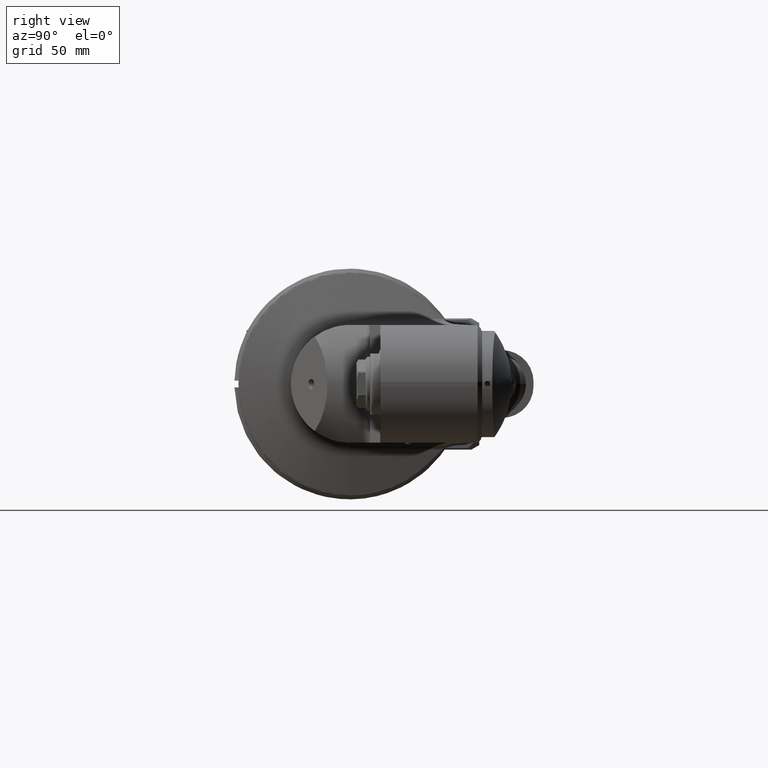
[diagram: clean part render]
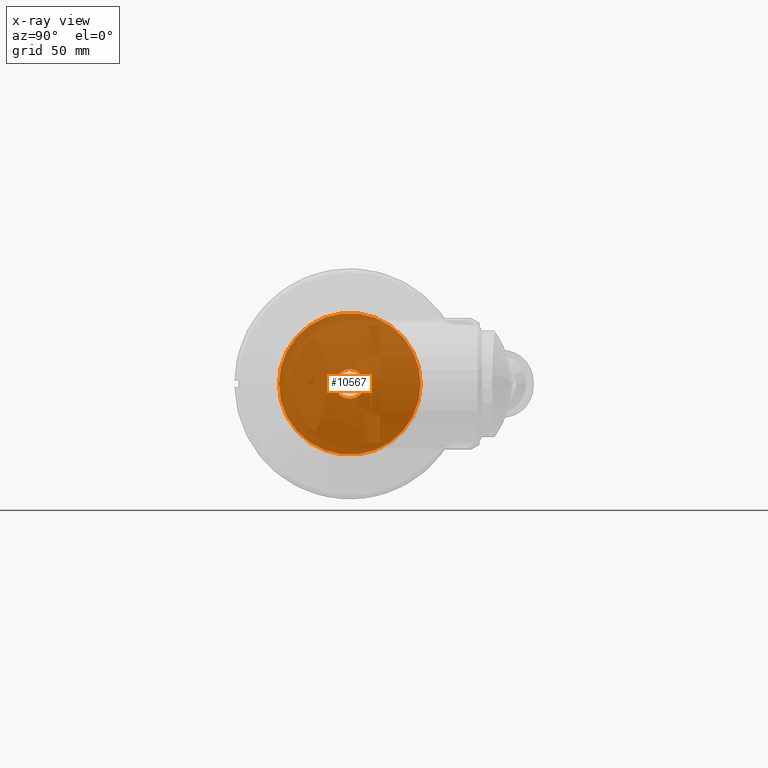
[diagram: x-ray — body ghosted, one internal face saturated and labeled with its STEP entity id]
A machine part, right view, then the same camera in x-ray: the body is ghosted and one INTERNAL B-rep face — a face not visible from any outside direction — is saturated and labeled: STEP entity #10567.
In plain terms, the highlighted planar face has unit normal (1, 0, 0).
Its self-contained STEP definition (entity closure, byte-faithful):
#310=FACE_BOUND('',#2633,.T.);
#973=CIRCLE('',#11725,31.35);
#982=CIRCLE('',#11750,6.5);
#1272=PLANE('',#11749);
#1885=FACE_OUTER_BOUND('',#2632,.T.);
#2632=EDGE_LOOP('',(#9651));
#2633=EDGE_LOOP('',(#9652));
#5200=VERTEX_POINT('',#49191);
#5223=VERTEX_POINT('',#49288);
#6676=EDGE_CURVE('',#5200,#5200,#973,.T.);
#6713=EDGE_CURVE('',#5223,#5223,#982,.T.);
#9651=ORIENTED_EDGE('',*,*,#6676,.T.);
#9652=ORIENTED_EDGE('',*,*,#6713,.T.);
#10567=ADVANCED_FACE('',(#1885,#310),#1272,.T.);
#11725=AXIS2_PLACEMENT_3D('',#49193,#14590,#14591);
#11749=AXIS2_PLACEMENT_3D('',#49287,#14656,#14657);
#11750=AXIS2_PLACEMENT_3D('',#49289,#14658,#14659);
#14590=DIRECTION('center_axis',(1.,0.,0.));
#14591=DIRECTION('ref_axis',(0.,1.,-1.400901549979E-9));
#14656=DIRECTION('center_axis',(1.,0.,0.));
#14657=DIRECTION('ref_axis',(0.,1.,-1.400901672444E-9));
#14658=DIRECTION('center_axis',(-1.,0.,0.));
#14659=DIRECTION('ref_axis',(0.,-1.,0.));
#49191=CARTESIAN_POINT('',(-44.0000000000002,31.35,-4.391826744364E-8));
#49193=CARTESIAN_POINT('Origin',(-44.0000000000002,0.,0.));
#49287=CARTESIAN_POINT('Origin',(-44.0000000000002,0.,0.));
#49288=CARTESIAN_POINT('',(-44.0000000000001,6.5,0.));
#49289=CARTESIAN_POINT('Origin',(-44.,0.,0.));